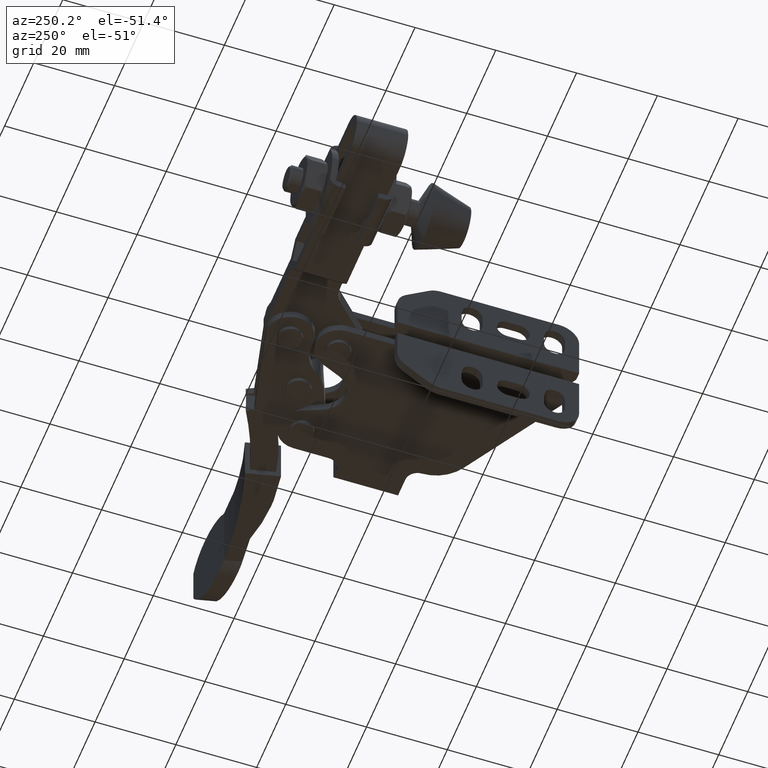
[diagram: clean part render]
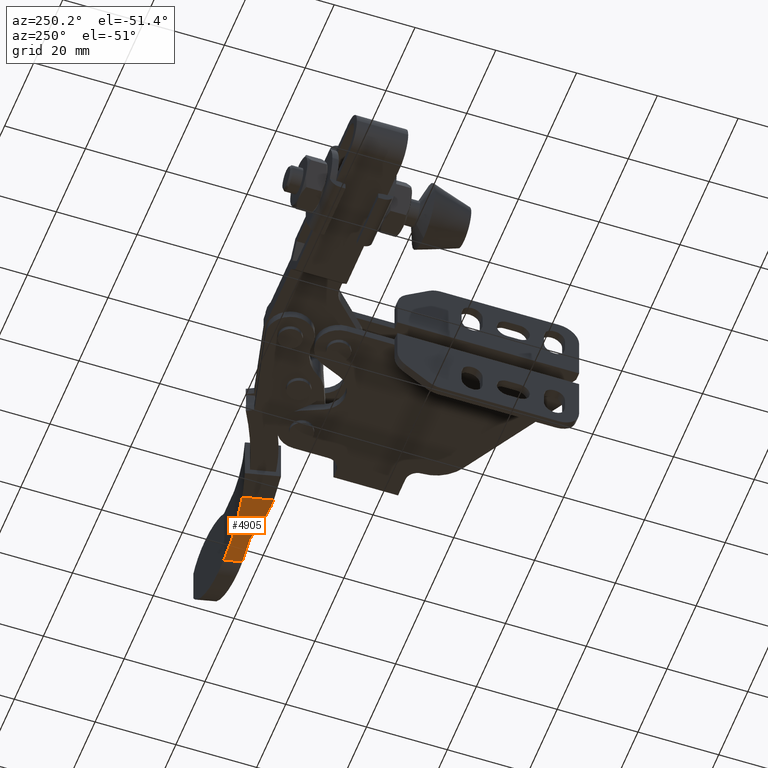
[diagram: same view with one face highlighted and labeled with its STEP entity id]
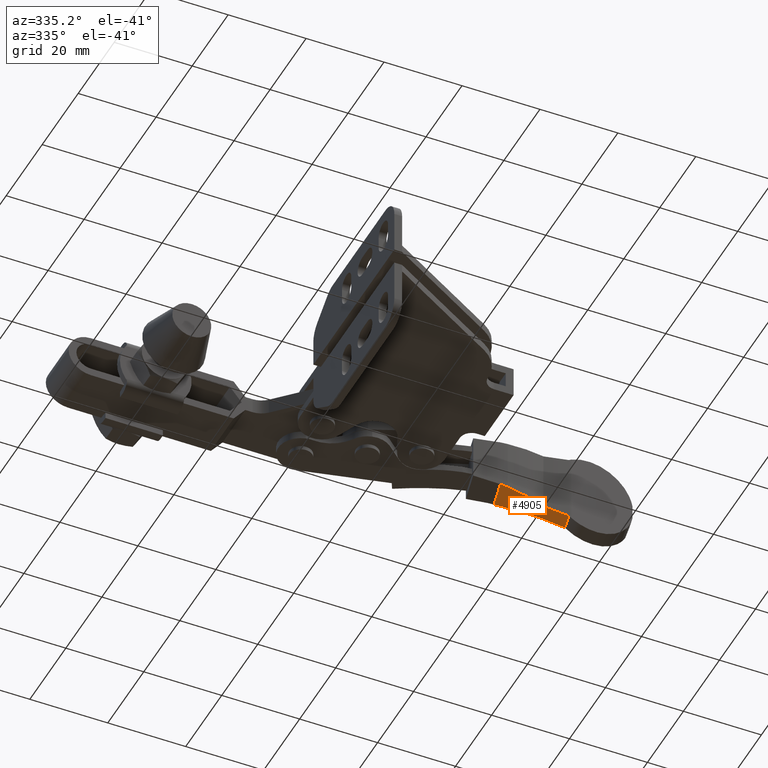
[diagram: same view with one face highlighted and labeled with its STEP entity id]
A machine part, auxiliary view. The second image highlights one B-rep face of the part: STEP entity #4905.
A second angle (auxiliary view) of the same face is appended — the face is thin or edge-on in the first view.
In plain terms, the highlighted cylindrical surface (partial cylindrical patch) has radius 350 mm, axis along (0.2273, 0.9738, -0).
Its self-contained STEP definition (entity closure, byte-faithful):
#16 = VERTEX_POINT ( 'NONE', #4601 ) ;
#369 = CARTESIAN_POINT ( 'NONE',  ( 19.50425984917126600, 19.65757824698035000, -8.977687391297346100 ) ) ;
#459 = DIRECTION ( 'NONE',  ( 0.2273152359232463700, 0.9738212276989852700, -5.621189200537000000E-022 ) ) ;
#494 = CARTESIAN_POINT ( 'NONE',  ( 33.42759395600298000, 24.94978687271865400, -10.60572498504183300 ) ) ;
#768 = EDGE_LOOP ( 'NONE', ( #6016, #4551, #1790, #7713, #3130, #4695, #9920 ) ) ;
#780 = EDGE_CURVE ( 'NONE', #8236, #6115, #6871, .T. ) ;
#943 = LINE ( 'NONE', #5625, #2149 ) ;
#1324 = CARTESIAN_POINT ( 'NONE',  ( 26.05880298282687600, 21.06250147665629800, -9.722492895901071500 ) ) ;
#1414 = VERTEX_POINT ( 'NONE', #6497 ) ;
#1646 =( BOUNDED_CURVE ( )  B_SPLINE_CURVE ( 3, ( #5095, #7077, #2017, #8316 ),
 .UNSPECIFIED., .F., .T. ) 
 B_SPLINE_CURVE_WITH_KNOTS ( ( 4, 4 ),
 ( 4.860014999212218400, 4.860923330852149800 ),
 .UNSPECIFIED. ) 
 CURVE ( )  GEOMETRIC_REPRESENTATION_ITEM ( )  RATIONAL_B_SPLINE_CURVE ( ( 1.000000000000000000, 0.9999999312444704000, 0.9999999312444704000, 1.000000000000000000 ) ) 
 REPRESENTATION_ITEM ( '' )  );
#1717 = FACE_OUTER_BOUND ( 'NONE', #768, .T. ) ;
#1790 = ORIENTED_EDGE ( 'NONE', *, *, #10187, .F. ) ;
#2017 = CARTESIAN_POINT ( 'NONE',  ( 33.31732547116504200, 24.93845187901751000, -10.59004231379374900 ) ) ;
#2149 = VECTOR ( 'NONE', #459, 1000.000000000000000 ) ;
#2301 = CARTESIAN_POINT ( 'NONE',  ( 30.21903856903799100, 24.88814573504700400, -10.14301611371463000 ) ) ;
#2337 = B_SPLINE_CURVE_WITH_KNOTS ( 'NONE', 3,
 ( #4020, #8291, #5364, #6124, #2301, #6156 ),
 .UNSPECIFIED., .F., .F.,
 ( 4, 2, 4 ),
 ( 0.0000000000000000000, 0.008669969931598358800, 0.01733993986319671800 ),
 .UNSPECIFIED. ) ;
#2414 = LINE ( 'NONE', #2824, #8704 ) ;
#2824 = CARTESIAN_POINT ( 'NONE',  ( 29.71553373637149400, 9.047275869916028100, -10.60572498504183300 ) ) ;
#3067 = CARTESIAN_POINT ( 'NONE',  ( 22.80861727215236100, 20.20002766094387100, -9.342591748807484100 ) ) ;
#3106 = B_SPLINE_CURVE_WITH_KNOTS ( 'NONE', 3,
 ( #3864, #8455, #6312, #5720 ),
 .UNSPECIFIED., .F., .F.,
 ( 4, 4 ),
 ( 6.938893903907228400E-018, 0.001867388412720517000 ),
 .UNSPECIFIED. ) ;
#3130 = ORIENTED_EDGE ( 'NONE', *, *, #3304, .T. ) ;
#3254 = EDGE_CURVE ( 'NONE', #3620, #16, #3106, .T. ) ;
#3304 = EDGE_CURVE ( 'NONE', #6115, #3620, #3854, .T. ) ;
#3585 = CARTESIAN_POINT ( 'NONE',  ( 33.09676607689792100, 24.91577958649055400, -10.55881977615416300 ) ) ;
#3615 = DIRECTION ( 'NONE',  ( -0.9738212276989852700, 0.2273152359232464300, 0.0000000000000000000 ) ) ;
#3620 = VERTEX_POINT ( 'NONE', #6158 ) ;
#3854 = B_SPLINE_CURVE_WITH_KNOTS ( 'NONE', 3,
 ( #6487, #6877, #3067, #369, #6046, #8350 ),
 .UNSPECIFIED., .F., .F.,
 ( 4, 2, 4 ),
 ( 0.0000000000000000000, 0.005052614420662409000, 0.01010522884132481800 ),
 .UNSPECIFIED. ) ;
#3864 = CARTESIAN_POINT ( 'NONE',  ( 16.14530725229687400, 19.43555505541699800, -8.631027056434227500 ) ) ;
#3924 = EDGE_CURVE ( 'NONE', #1414, #10067, #2337, .T. ) ;
#4020 = CARTESIAN_POINT ( 'NONE',  ( 15.97146556828757400, 26.63097232074375500, -8.447964301841938800 ) ) ;
#4083 = CARTESIAN_POINT ( 'NONE',  ( 30.30138576244236900, 20.67709121147732500, -10.29551086515643600 ) ) ;
#4551 = ORIENTED_EDGE ( 'NONE', *, *, #9931, .T. ) ;
#4601 = CARTESIAN_POINT ( 'NONE',  ( 14.28702906679042800, 19.41482591856081900, -8.447964301841883700 ) ) ;
#4603 = DIRECTION ( 'NONE',  ( 0.2273152359232463700, 0.9738212276989852700, -5.621189200537000000E-022 ) ) ;
#4695 = ORIENTED_EDGE ( 'NONE', *, *, #3254, .T. ) ;
#4905 = ADVANCED_FACE ( 'NONE', ( #1717 ), #5082, .F. ) ;
#5082 = CYLINDRICAL_SURFACE ( 'NONE', #10213, 349.9999999999998300 ) ;
#5095 = CARTESIAN_POINT ( 'NONE',  ( 33.09676607689792100, 24.91577958649055400, -10.55881977615416300 ) ) ;
#5364 = CARTESIAN_POINT ( 'NONE',  ( 21.64483792207230200, 25.58866070633468600, -9.053658567342747400 ) ) ;
#5431 = CARTESIAN_POINT ( 'NONE',  ( 32.43116450689030500, 20.68107102747749300, -10.60572498504183300 ) ) ;
#5625 = CARTESIAN_POINT ( 'NONE',  ( 12.78924758210097500, 12.99831187223626100, -8.447964301841883700 ) ) ;
#5720 = CARTESIAN_POINT ( 'NONE',  ( 14.28702906679042800, 19.41482591856081900, -8.447964301841883700 ) ) ;
#5827 = EDGE_CURVE ( 'NONE', #16, #1414, #943, .T. ) ;
#6016 = ORIENTED_EDGE ( 'NONE', *, *, #3924, .T. ) ;
#6046 = CARTESIAN_POINT ( 'NONE',  ( 17.83410101094936800, 19.49218164284500400, -8.800795859677231500 ) ) ;
#6115 = VERTEX_POINT ( 'NONE', #10551 ) ;
#6124 = CARTESIAN_POINT ( 'NONE',  ( 27.35324036018422700, 25.01780731453373400, -9.758242121814998200 ) ) ;
#6156 = CARTESIAN_POINT ( 'NONE',  ( 33.09676607689792100, 24.91577958649055400, -10.55881977615416300 ) ) ;
#6158 = CARTESIAN_POINT ( 'NONE',  ( 16.14530725229687400, 19.43555505541699800, -8.631027056434227500 ) ) ;
#6312 = CARTESIAN_POINT ( 'NONE',  ( 14.90673156297327900, 19.40787931447618700, -8.507748144592120800 ) ) ;
#6487 = CARTESIAN_POINT ( 'NONE',  ( 26.05880298282687600, 21.06250147665629800, -9.722492895901071500 ) ) ;
#6497 = CARTESIAN_POINT ( 'NONE',  ( 15.97146556828757400, 26.63097232074375500, -8.447964301841938800 ) ) ;
#6871 = B_SPLINE_CURVE_WITH_KNOTS ( 'NONE', 3,
 ( #10154, #4083, #10266, #1324 ),
 .UNSPECIFIED., .F., .F.,
 ( 4, 4 ),
 ( 0.0000000000000000000, 0.006444577527209424500 ),
 .UNSPECIFIED. ) ;
#6877 = CARTESIAN_POINT ( 'NONE',  ( 24.44281453312567400, 20.57708218126364800, -9.530614048624247700 ) ) ;
#7077 = CARTESIAN_POINT ( 'NONE',  ( 33.20704950388129400, 24.92711611616207900, -10.57440724308951900 ) ) ;
#7713 = ORIENTED_EDGE ( 'NONE', *, *, #780, .T. ) ;
#7963 = DIRECTION ( 'NONE',  ( 0.2273152359232463700, 0.9738212276989852700, -5.621189200537000000E-022 ) ) ;
#8236 = VERTEX_POINT ( 'NONE', #5431 ) ;
#8291 = CARTESIAN_POINT ( 'NONE',  ( 18.80223342967142500, 26.02984194345505700, -8.733842546678776100 ) ) ;
#8316 = CARTESIAN_POINT ( 'NONE',  ( 33.42759395600298000, 24.94978687271865400, -10.60572498504183300 ) ) ;
#8350 = CARTESIAN_POINT ( 'NONE',  ( 16.14530725229687400, 19.43555505541699800, -8.631027056434227500 ) ) ;
#8455 = CARTESIAN_POINT ( 'NONE',  ( 15.52615591210869700, 19.41479442238132300, -8.568785837510084500 ) ) ;
#8704 = VECTOR ( 'NONE', #7963, 1000.000000000000000 ) ;
#9365 = CARTESIAN_POINT ( 'NONE',  ( -20.72458187316135200, 20.82131247298844900, -356.7518889091367100 ) ) ;
#9538 = VERTEX_POINT ( 'NONE', #494 ) ;
#9920 = ORIENTED_EDGE ( 'NONE', *, *, #5827, .T. ) ;
#9931 = EDGE_CURVE ( 'NONE', #10067, #9538, #1646, .T. ) ;
#10067 = VERTEX_POINT ( 'NONE', #3585 ) ;
#10154 = CARTESIAN_POINT ( 'NONE',  ( 32.43116450689030500, 20.68107102747749300, -10.60572498504183300 ) ) ;
#10187 = EDGE_CURVE ( 'NONE', #8236, #9538, #2414, .T. ) ;
#10213 = AXIS2_PLACEMENT_3D ( 'NONE', #9365, #4603, #3615 ) ;
#10266 = CARTESIAN_POINT ( 'NONE',  ( 28.17730242176463000, 20.80395871625339800, -10.00071282973600400 ) ) ;
#10551 = CARTESIAN_POINT ( 'NONE',  ( 26.05880298282687600, 21.06250147665629800, -9.722492895901071500 ) ) ;